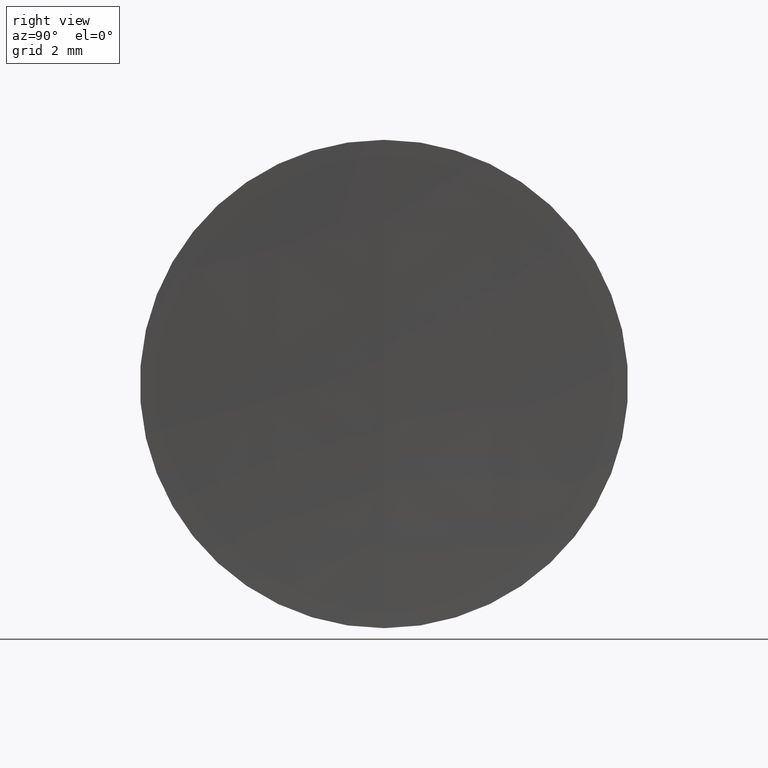
[diagram: clean part render]
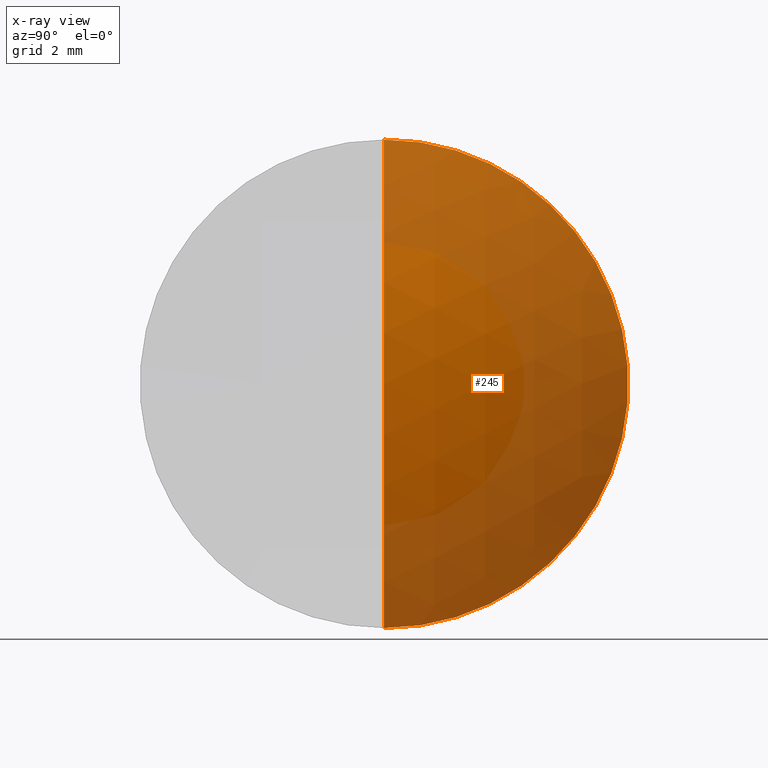
[diagram: x-ray — body ghosted, one internal face saturated and labeled with its STEP entity id]
A machine part, right view, then the same camera in x-ray: the body is ghosted and one INTERNAL B-rep face — a face not visible from any outside direction — is saturated and labeled: STEP entity #245.
In plain terms, the highlighted spherical surface has radius 12.94 mm.
Its self-contained STEP definition (entity closure, byte-faithful):
#3 = DIRECTION ( 'NONE',  ( 0.0000000000000000000, -1.000000000000000000, 0.0000000000000000000 ) ) ;
#5 = AXIS2_PLACEMENT_3D ( 'NONE', #135, #143, #211 ) ;
#14 = CARTESIAN_POINT ( 'NONE',  ( 25.22592517938952700, 0.0000000000000000000, 7.923464790483375200E-016 ) ) ;
#37 = DIRECTION ( 'NONE',  ( 0.0000000000000000000, 0.0000000000000000000, -1.000000000000000000 ) ) ;
#59 = FACE_OUTER_BOUND ( 'NONE', #241, .T. ) ;
#93 = CIRCLE ( 'NONE', #5, 6.350000000000004100 ) ;
#98 = ORIENTED_EDGE ( 'NONE', *, *, #278, .F. ) ;
#104 = CARTESIAN_POINT ( 'NONE',  ( 12.28592517938952600, 0.0000000000000000000, 0.0000000000000000000 ) ) ;
#117 = DIRECTION ( 'NONE',  ( 0.0000000000000000000, 0.0000000000000000000, 1.000000000000000000 ) ) ;
#135 = CARTESIAN_POINT ( 'NONE',  ( 23.56072451241536600, 0.0000000000000000000, 0.0000000000000000000 ) ) ;
#143 = DIRECTION ( 'NONE',  ( -1.000000000000000000, -0.0000000000000000000, -0.0000000000000000000 ) ) ;
#147 = CARTESIAN_POINT ( 'NONE',  ( 12.28592517938952600, 0.0000000000000000000, 0.0000000000000000000 ) ) ;
#159 = CIRCLE ( 'NONE', #188, 12.94000000000000000 ) ;
#160 = CIRCLE ( 'NONE', #185, 12.94000000000000000 ) ;
#166 = DIRECTION ( 'NONE',  ( 0.0000000000000000000, 1.000000000000000000, 0.0000000000000000000 ) ) ;
#171 = VERTEX_POINT ( 'NONE', #333 ) ;
#185 = AXIS2_PLACEMENT_3D ( 'NONE', #104, #3, #37 ) ;
#186 = EDGE_CURVE ( 'NONE', #197, #171, #159, .T. ) ;
#187 = ORIENTED_EDGE ( 'NONE', *, *, #186, .T. ) ;
#188 = AXIS2_PLACEMENT_3D ( 'NONE', #252, #202, #347 ) ;
#197 = VERTEX_POINT ( 'NONE', #14 ) ;
#202 = DIRECTION ( 'NONE',  ( -0.0000000000000000000, 1.000000000000000000, 1.224646799147353200E-016 ) ) ;
#210 = ORIENTED_EDGE ( 'NONE', *, *, #286, .F. ) ;
#211 = DIRECTION ( 'NONE',  ( 0.0000000000000000000, 0.0000000000000000000, 1.000000000000000000 ) ) ;
#241 = EDGE_LOOP ( 'NONE', ( #210, #187, #98 ) ) ;
#245 = ADVANCED_FACE ( 'NONE', ( #59 ), #299, .T. ) ;
#252 = CARTESIAN_POINT ( 'NONE',  ( 12.28592517938952600, 0.0000000000000000000, 0.0000000000000000000 ) ) ;
#266 = CARTESIAN_POINT ( 'NONE',  ( 23.56072451241536600, 0.0000000000000000000, 6.350000000000004100 ) ) ;
#278 = EDGE_CURVE ( 'NONE', #303, #171, #93, .T. ) ;
#282 = AXIS2_PLACEMENT_3D ( 'NONE', #147, #166, #117 ) ;
#286 = EDGE_CURVE ( 'NONE', #197, #303, #160, .T. ) ;
#299 = SPHERICAL_SURFACE ( 'NONE', #282, 12.94000000000000000 ) ;
#303 = VERTEX_POINT ( 'NONE', #266 ) ;
#333 = CARTESIAN_POINT ( 'NONE',  ( 23.56072451241536600, 7.776507174585697100E-016, -6.350000000000004100 ) ) ;
#347 = DIRECTION ( 'NONE',  ( 0.0000000000000000000, -1.224646799147353200E-016, 1.000000000000000000 ) ) ;